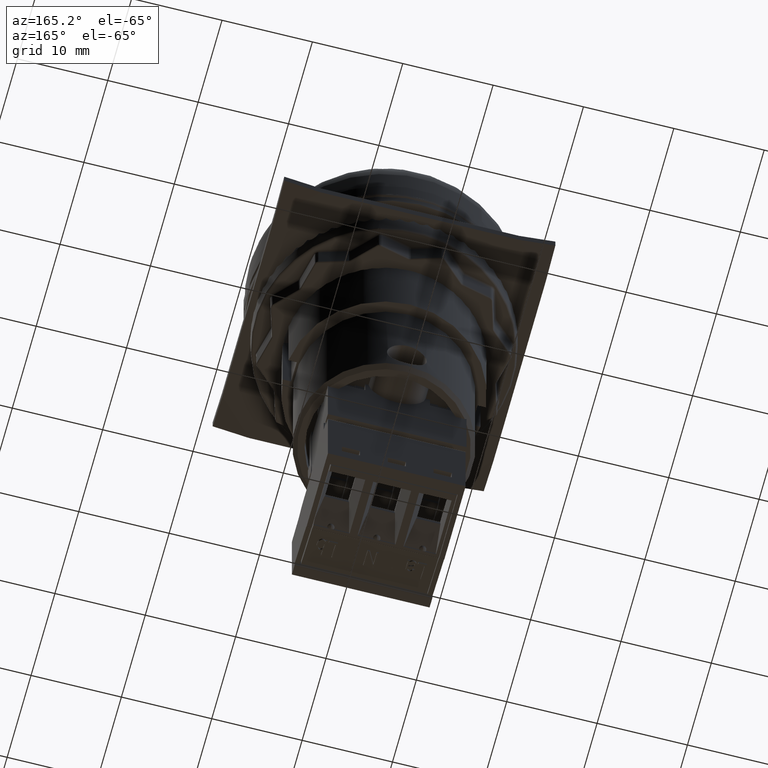
[diagram: clean part render]
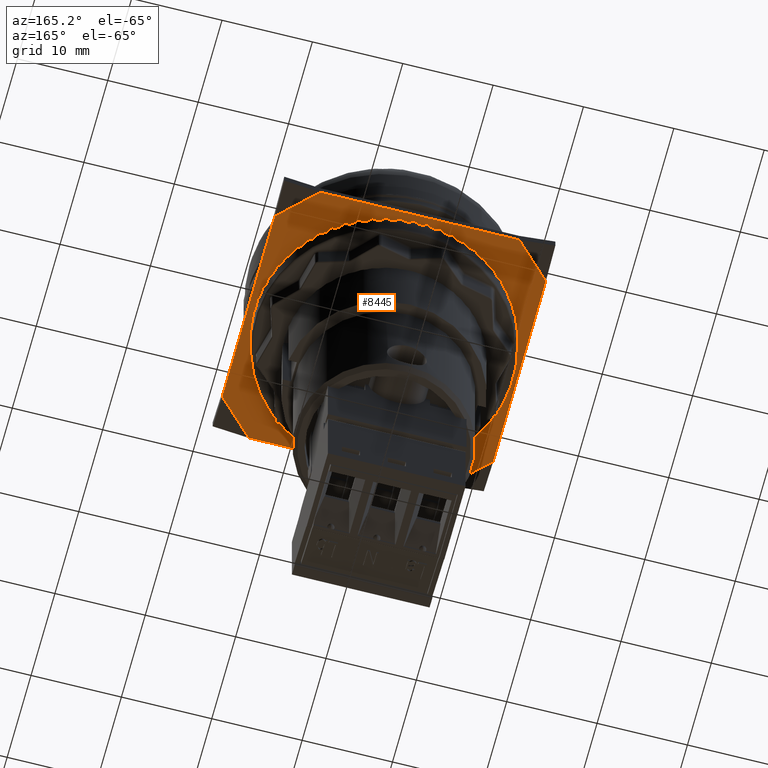
[diagram: same view with one face highlighted and labeled with its STEP entity id]
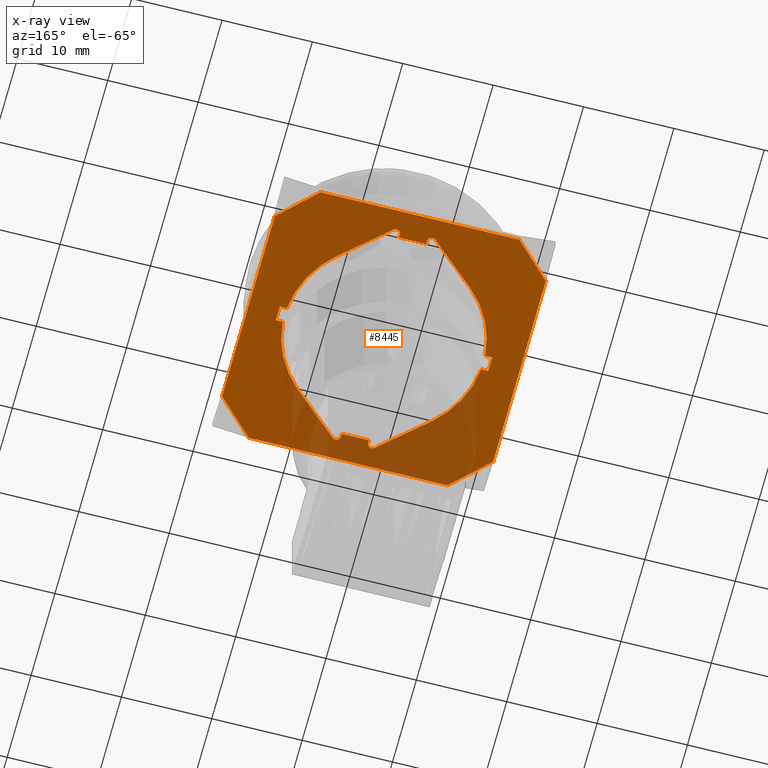
[diagram: x-ray of the same camera — body ghosted, the highlighted face saturated]
A machine part, auxiliary view. The second image highlights one B-rep face of the part: STEP entity #8445.
The next image is the same camera in x-ray: the body ghosted, the highlighted face saturated — about 26% of this face is hidden behind the body in this view.
In plain terms, the highlighted planar face has unit normal (-0, 0, -1).
Its self-contained STEP definition (entity closure, byte-faithful):
#3542=LINE('',#49733,#5941);
#3543=LINE('',#49736,#5942);
#3544=LINE('',#49740,#5943);
#3545=LINE('',#49744,#5944);
#3546=LINE('',#49746,#5945);
#3547=LINE('',#49748,#5946);
#3548=LINE('',#49752,#5947);
#3549=LINE('',#49756,#5948);
#3550=LINE('',#49758,#5949);
#3551=LINE('',#49760,#5950);
#3552=LINE('',#49764,#5951);
#3553=LINE('',#49765,#5952);
#3554=LINE('',#49767,#5953);
#3555=LINE('',#49769,#5954);
#3556=LINE('',#49770,#5955);
#3557=LINE('',#49774,#5956);
#3558=LINE('',#49775,#5957);
#3559=LINE('',#49778,#5958);
#3560=LINE('',#49780,#5959);
#3561=LINE('',#49782,#5960);
#3562=LINE('',#49784,#5961);
#3563=LINE('',#49786,#5962);
#3564=LINE('',#49788,#5963);
#3565=LINE('',#49790,#5964);
#5941=VECTOR('',#32558,1.);
#5942=VECTOR('',#32559,1.);
#5943=VECTOR('',#32562,1.);
#5944=VECTOR('',#32565,1.);
#5945=VECTOR('',#32566,1.);
#5946=VECTOR('',#32567,1.);
#5947=VECTOR('',#32570,1.);
#5948=VECTOR('',#32573,1.);
#5949=VECTOR('',#32574,1.);
#5950=VECTOR('',#32575,1.);
#5951=VECTOR('',#32578,1.);
#5952=VECTOR('',#32579,1.);
#5953=VECTOR('',#32580,1.);
#5954=VECTOR('',#32581,1.);
#5955=VECTOR('',#32582,1.);
#5956=VECTOR('',#32585,1.);
#5957=VECTOR('',#32586,1.);
#5958=VECTOR('',#32587,1.);
#5959=VECTOR('',#32588,1.);
#5960=VECTOR('',#32589,1.);
#5961=VECTOR('',#32590,1.);
#5962=VECTOR('',#32591,1.);
#5963=VECTOR('',#32592,1.);
#5964=VECTOR('',#32593,1.);
#8445=ADVANCED_FACE('',(#10209,#10210),#9542,.T.);
#9542=PLANE('',#28919);
#10209=FACE_BOUND('',#10886,.T.);
#10210=FACE_BOUND('',#10887,.T.);
#10886=EDGE_LOOP('',(#14714,#14715,#14716,#14717,#14718,#14719,#14720,#14721,
#14722,#14723,#14724,#14725,#14726,#14727,#14728,#14729,#14730,#14731,#14732,
#14733,#14734,#14735,#14736,#14737));
#10887=EDGE_LOOP('',(#14738,#14739,#14740,#14741,#14742,#14743,#14744,#14745));
#14714=ORIENTED_EDGE('',*,*,#24319,.F.);
#14715=ORIENTED_EDGE('',*,*,#24320,.T.);
#14716=ORIENTED_EDGE('',*,*,#24321,.T.);
#14717=ORIENTED_EDGE('',*,*,#24322,.F.);
#14718=ORIENTED_EDGE('',*,*,#24323,.T.);
#14719=ORIENTED_EDGE('',*,*,#24324,.F.);
#14720=ORIENTED_EDGE('',*,*,#24325,.F.);
#14721=ORIENTED_EDGE('',*,*,#24326,.F.);
#14722=ORIENTED_EDGE('',*,*,#24327,.T.);
#14723=ORIENTED_EDGE('',*,*,#24328,.F.);
#14724=ORIENTED_EDGE('',*,*,#24329,.T.);
#14725=ORIENTED_EDGE('',*,*,#24330,.F.);
#14726=ORIENTED_EDGE('',*,*,#24331,.T.);
#14727=ORIENTED_EDGE('',*,*,#24332,.T.);
#14728=ORIENTED_EDGE('',*,*,#24333,.F.);
#14729=ORIENTED_EDGE('',*,*,#24334,.T.);
#14730=ORIENTED_EDGE('',*,*,#24316,.F.);
#14731=ORIENTED_EDGE('',*,*,#24335,.T.);
#14732=ORIENTED_EDGE('',*,*,#24336,.T.);
#14733=ORIENTED_EDGE('',*,*,#24337,.T.);
#14734=ORIENTED_EDGE('',*,*,#24312,.F.);
#14735=ORIENTED_EDGE('',*,*,#24338,.T.);
#14736=ORIENTED_EDGE('',*,*,#24339,.F.);
#14737=ORIENTED_EDGE('',*,*,#24340,.F.);
#14738=ORIENTED_EDGE('',*,*,#24341,.F.);
#14739=ORIENTED_EDGE('',*,*,#24342,.F.);
#14740=ORIENTED_EDGE('',*,*,#24343,.T.);
#14741=ORIENTED_EDGE('',*,*,#24344,.F.);
#14742=ORIENTED_EDGE('',*,*,#24345,.F.);
#14743=ORIENTED_EDGE('',*,*,#24346,.T.);
#14744=ORIENTED_EDGE('',*,*,#24347,.T.);
#14745=ORIENTED_EDGE('',*,*,#24348,.T.);
#21109=VERTEX_POINT('',#49716);
#21111=VERTEX_POINT('',#49719);
#21113=VERTEX_POINT('',#49725);
#21115=VERTEX_POINT('',#49728);
#21117=VERTEX_POINT('',#49734);
#21118=VERTEX_POINT('',#49735);
#21119=VERTEX_POINT('',#49737);
#21120=VERTEX_POINT('',#49739);
#21121=VERTEX_POINT('',#49741);
#21122=VERTEX_POINT('',#49743);
#21123=VERTEX_POINT('',#49745);
#21124=VERTEX_POINT('',#49747);
#21125=VERTEX_POINT('',#49749);
#21126=VERTEX_POINT('',#49751);
#21127=VERTEX_POINT('',#49753);
#21128=VERTEX_POINT('',#49755);
#21129=VERTEX_POINT('',#49757);
#21130=VERTEX_POINT('',#49759);
#21131=VERTEX_POINT('',#49761);
#21132=VERTEX_POINT('',#49763);
#21133=VERTEX_POINT('',#49766);
#21134=VERTEX_POINT('',#49768);
#21135=VERTEX_POINT('',#49771);
#21136=VERTEX_POINT('',#49773);
#21137=VERTEX_POINT('',#49776);
#21138=VERTEX_POINT('',#49777);
#21139=VERTEX_POINT('',#49779);
#21140=VERTEX_POINT('',#49781);
#21141=VERTEX_POINT('',#49783);
#21142=VERTEX_POINT('',#49785);
#21143=VERTEX_POINT('',#49787);
#21144=VERTEX_POINT('',#49789);
#24312=EDGE_CURVE('',#21109,#21111,#27557,.T.);
#24316=EDGE_CURVE('',#21113,#21115,#27559,.T.);
#24319=EDGE_CURVE('',#21117,#21118,#3542,.T.);
#24320=EDGE_CURVE('',#21117,#21119,#3543,.T.);
#24321=EDGE_CURVE('',#21119,#21120,#27561,.T.);
#24322=EDGE_CURVE('',#21121,#21120,#3544,.T.);
#24323=EDGE_CURVE('',#21121,#21122,#27562,.T.);
#24324=EDGE_CURVE('',#21123,#21122,#3545,.T.);
#24325=EDGE_CURVE('',#21124,#21123,#3546,.T.);
#24326=EDGE_CURVE('',#21125,#21124,#3547,.T.);
#24327=EDGE_CURVE('',#21125,#21126,#27563,.T.);
#24328=EDGE_CURVE('',#21127,#21126,#3548,.T.);
#24329=EDGE_CURVE('',#21127,#21128,#27564,.T.);
#24330=EDGE_CURVE('',#21129,#21128,#3549,.T.);
#24331=EDGE_CURVE('',#21129,#21130,#3550,.T.);
#24332=EDGE_CURVE('',#21130,#21131,#3551,.T.);
#24333=EDGE_CURVE('',#21132,#21131,#27565,.T.);
#24334=EDGE_CURVE('',#21132,#21115,#3552,.T.);
#24335=EDGE_CURVE('',#21113,#21133,#3553,.T.);
#24336=EDGE_CURVE('',#21133,#21134,#3554,.T.);
#24337=EDGE_CURVE('',#21134,#21111,#3555,.T.);
#24338=EDGE_CURVE('',#21109,#21135,#3556,.T.);
#24339=EDGE_CURVE('',#21136,#21135,#27566,.T.);
#24340=EDGE_CURVE('',#21118,#21136,#3557,.T.);
#24341=EDGE_CURVE('',#21137,#21138,#3558,.T.);
#24342=EDGE_CURVE('',#21139,#21137,#3559,.T.);
#24343=EDGE_CURVE('',#21139,#21140,#3560,.T.);
#24344=EDGE_CURVE('',#21141,#21140,#3561,.T.);
#24345=EDGE_CURVE('',#21142,#21141,#3562,.T.);
#24346=EDGE_CURVE('',#21142,#21143,#3563,.T.);
#24347=EDGE_CURVE('',#21143,#21144,#3564,.T.);
#24348=EDGE_CURVE('',#21144,#21138,#3565,.T.);
#27557=CIRCLE('',#28907,0.5);
#27559=CIRCLE('',#28910,0.5);
#27561=CIRCLE('',#28913,11.);
#27562=CIRCLE('',#28914,0.5);
#27563=CIRCLE('',#28915,0.5);
#27564=CIRCLE('',#28916,11.);
#27565=CIRCLE('',#28917,11.);
#27566=CIRCLE('',#28918,11.);
#28907=AXIS2_PLACEMENT_3D('',#49718,#32543,#32544);
#28910=AXIS2_PLACEMENT_3D('',#49727,#32551,#32552);
#28913=AXIS2_PLACEMENT_3D('',#49738,#32560,#32561);
#28914=AXIS2_PLACEMENT_3D('',#49742,#32563,#32564);
#28915=AXIS2_PLACEMENT_3D('',#49750,#32568,#32569);
#28916=AXIS2_PLACEMENT_3D('',#49754,#32571,#32572);
#28917=AXIS2_PLACEMENT_3D('',#49762,#32576,#32577);
#28918=AXIS2_PLACEMENT_3D('',#49772,#32583,#32584);
#28919=AXIS2_PLACEMENT_3D('',#49791,#32594,#32595);
#32543=DIRECTION('',(-5.20417042793042E-018,0.,-1.));
#32544=DIRECTION('',(-0.999999999999999,0.,0.));
#32551=DIRECTION('',(-5.20417042793042E-018,0.,-1.));
#32552=DIRECTION('',(-1.,0.,0.));
#32558=DIRECTION('',(0.,1.,0.));
#32559=DIRECTION('',(1.,0.,-5.20417042793042E-018));
#32560=DIRECTION('',(5.20417042793042E-018,0.,1.));
#32561=DIRECTION('',(-1.,0.,0.));
#32562=DIRECTION('',(-0.74322424796615,0.669042388220022,3.46944695195361E-018));
#32563=DIRECTION('',(5.20417042793042E-018,0.,1.));
#32564=DIRECTION('',(-0.999999999999999,0.,0.));
#32565=DIRECTION('',(-4.64268986290721E-020,-1.,1.88079096131566E-037));
#32566=DIRECTION('',(-1.,0.,5.20417042793042E-018));
#32567=DIRECTION('',(1.85707594516288E-019,1.,-7.52316384526264E-037));
#32568=DIRECTION('',(5.20417042793042E-018,0.,1.));
#32569=DIRECTION('',(-1.,0.,0.));
#32570=DIRECTION('',(-0.74322424796615,-0.669042388220022,3.46944695195361E-018));
#32571=DIRECTION('',(5.20417042793042E-018,0.,1.));
#32572=DIRECTION('',(-1.,0.,0.));
#32573=DIRECTION('',(-1.,0.,6.93889390390723E-018));
#32574=DIRECTION('',(0.,1.,0.));
#32575=DIRECTION('',(-1.,0.,6.93889390390723E-018));
#32576=DIRECTION('',(-5.20417042793042E-018,0.,-1.));
#32577=DIRECTION('',(-1.,0.,0.));
#32578=DIRECTION('',(-0.74322424796615,0.669042388220022,3.46944695195361E-018));
#32579=DIRECTION('',(1.85707594516288E-019,-1.,-7.52316384526264E-037));
#32580=DIRECTION('',(-1.,0.,5.20417042793042E-018));
#32581=DIRECTION('',(-4.64268986290721E-020,1.,1.88079096131566E-037));
#32582=DIRECTION('',(-0.74322424796615,-0.669042388220022,3.46944695195361E-018));
#32583=DIRECTION('',(-5.20417042793042E-018,0.,-1.));
#32584=DIRECTION('',(-1.,0.,0.));
#32585=DIRECTION('',(1.,0.,-5.20417042793042E-018));
#32586=DIRECTION('',(0.707106781186548,-0.707106781186547,-3.46944695195361E-018));
#32587=DIRECTION('',(0.,-1.,0.));
#32588=DIRECTION('',(0.707106781186548,0.707106781186547,-3.46944695195361E-018));
#32589=DIRECTION('',(-1.,0.,5.20417042793042E-018));
#32590=DIRECTION('',(-0.707106781186548,0.707106781186547,5.20417042793042E-018));
#32591=DIRECTION('',(0.,-1.,0.));
#32592=DIRECTION('',(-0.707106781186548,-0.707106781186547,5.20417042793042E-018));
#32593=DIRECTION('',(-1.,0.,5.20417042793042E-018));
#32594=DIRECTION('',(-5.20417042793042E-018,0.,-1.));
#32595=DIRECTION('',(1.,0.,-3.46944695195361E-018));
#49716=CARTESIAN_POINT('',(-4.10636422221666,0.298867657735832,27.6131759672629));
#49718=CARTESIAN_POINT('',(-3.77184302810665,-0.0727444662472453,27.6131759672629));
#49719=CARTESIAN_POINT('',(-3.27184302810665,-0.0727444662472435,27.6131759672629));
#49725=CARTESIAN_POINT('',(-0.271843028106653,-0.0727444662472435,27.6131759672629));
#49727=CARTESIAN_POINT('',(0.228156971893348,-0.0727444662472453,27.6131759672629));
#49728=CARTESIAN_POINT('',(0.56267816600336,0.298867657735829,27.6131759672629));
#49733=CARTESIAN_POINT('',(-13.5218430281066,-4.9,27.6131759672629));
#49734=CARTESIAN_POINT('',(-13.5218430281067,-13.225,27.6131759672629));
#49735=CARTESIAN_POINT('',(-13.5218430281067,-11.575,27.6131759672629));
#49736=CARTESIAN_POINT('',(-9.27184302810666,-13.225,27.6131759672629));
#49737=CARTESIAN_POINT('',(-12.7408618994552,-13.225,27.6131759672629));
#49738=CARTESIAN_POINT('',(-1.77184302810665,-12.4,27.6131759672629));
#49739=CARTESIAN_POINT('',(-9.13130929852689,-20.5754667276277,27.6131759672629));
#49740=CARTESIAN_POINT('',(-9.54481247544599,-20.203235663074,27.6131759672629));
#49741=CARTESIAN_POINT('',(-4.10636422221666,-25.0988676577358,27.6131759672629));
#49742=CARTESIAN_POINT('',(-3.77184302810665,-24.7272555337528,27.6131759672629));
#49743=CARTESIAN_POINT('',(-3.27184302810665,-24.7272555337528,27.6131759672629));
#49744=CARTESIAN_POINT('',(-3.27184302810665,-19.9,27.6131759672629));
#49745=CARTESIAN_POINT('',(-3.27184302810665,-24.4,27.6131759672629));
#49746=CARTESIAN_POINT('',(-3.27184302810665,-24.4,27.6131759672629));
#49747=CARTESIAN_POINT('',(-0.271843028106653,-24.4,27.6131759672629));
#49748=CARTESIAN_POINT('',(-0.271843028106653,-19.9,27.6131759672629));
#49749=CARTESIAN_POINT('',(-0.271843028106653,-24.7272555337528,27.6131759672629));
#49750=CARTESIAN_POINT('',(0.228156971893348,-24.7272555337528,27.6131759672629));
#49751=CARTESIAN_POINT('',(0.56267816600336,-25.0988676577358,27.6131759672629));
#49752=CARTESIAN_POINT('',(-2.28460782224006,-27.6619635507086,27.6131759672629));
#49753=CARTESIAN_POINT('',(5.58762324231359,-20.5754667276277,27.6131759672629));
#49754=CARTESIAN_POINT('',(-1.77184302810665,-12.4,27.6131759672629));
#49755=CARTESIAN_POINT('',(9.19717584324187,-13.225,27.6131759672629));
#49756=CARTESIAN_POINT('',(5.72815697189335,-13.225,27.6131759672629));
#49757=CARTESIAN_POINT('',(9.97815697189334,-13.225,27.6131759672629));
#49758=CARTESIAN_POINT('',(9.97815697189334,-4.9,27.6131759672629));
#49759=CARTESIAN_POINT('',(9.97815697189334,-11.575,27.6131759672629));
#49760=CARTESIAN_POINT('',(5.72815697189335,-11.575,27.6131759672629));
#49761=CARTESIAN_POINT('',(9.19717584324187,-11.575,27.6131759672629));
#49762=CARTESIAN_POINT('',(-1.77184302810665,-12.4,27.6131759672629));
#49763=CARTESIAN_POINT('',(5.58762324231359,-4.22453327237235,27.6131759672629));
#49764=CARTESIAN_POINT('',(-2.28460782224006,2.86196355070855,27.6131759672629));
#49765=CARTESIAN_POINT('',(-0.271843028106653,-4.9,27.6131759672629));
#49766=CARTESIAN_POINT('',(-0.271843028106653,-0.399999999999998,27.6131759672629));
#49767=CARTESIAN_POINT('',(-3.27184302810665,-0.399999999999998,27.6131759672629));
#49768=CARTESIAN_POINT('',(-3.27184302810665,-0.399999999999998,27.6131759672629));
#49769=CARTESIAN_POINT('',(-3.27184302810665,-4.9,27.6131759672629));
#49770=CARTESIAN_POINT('',(-9.54481247544599,-4.59676433692599,27.6131759672629));
#49771=CARTESIAN_POINT('',(-9.13130929852689,-4.22453327237235,27.6131759672629));
#49772=CARTESIAN_POINT('',(-1.77184302810665,-12.4,27.6131759672629));
#49773=CARTESIAN_POINT('',(-12.7408618994552,-11.575,27.6131759672629));
#49774=CARTESIAN_POINT('',(-9.27184302810666,-11.575,27.6131759672629));
#49775=CARTESIAN_POINT('',(-14.7718430281067,-25.4,27.6131759672629));
#49776=CARTESIAN_POINT('',(-16.7718430281067,-23.4,27.6131759672629));
#49777=CARTESIAN_POINT('',(-12.7718430281067,-27.4,27.6131759672629));
#49778=CARTESIAN_POINT('',(-16.7718430281067,-4.9,27.6131759672629));
#49779=CARTESIAN_POINT('',(-16.7718430281067,-1.4,27.6131759672629));
#49780=CARTESIAN_POINT('',(-14.7718430281067,0.600000000000005,27.6131759672629));
#49781=CARTESIAN_POINT('',(-12.7718430281067,2.6,27.6131759672629));
#49782=CARTESIAN_POINT('',(-9.27184302810666,2.6,27.6131759672629));
#49783=CARTESIAN_POINT('',(9.22815697189335,2.6,27.6131759672629));
#49784=CARTESIAN_POINT('',(11.2281569718934,0.600000000000005,27.6131759672629));
#49785=CARTESIAN_POINT('',(13.2281569718934,-1.4,27.6131759672629));
#49786=CARTESIAN_POINT('',(13.2281569718934,-4.9,27.6131759672629));
#49787=CARTESIAN_POINT('',(13.2281569718934,-23.4,27.6131759672629));
#49788=CARTESIAN_POINT('',(11.2281569718934,-25.4,27.6131759672629));
#49789=CARTESIAN_POINT('',(9.22815697189335,-27.4,27.6131759672629));
#49790=CARTESIAN_POINT('',(-9.27184302810666,-27.4,27.6131759672629));
#49791=CARTESIAN_POINT('',(-9.27184302810666,-4.9,27.6131759672629));